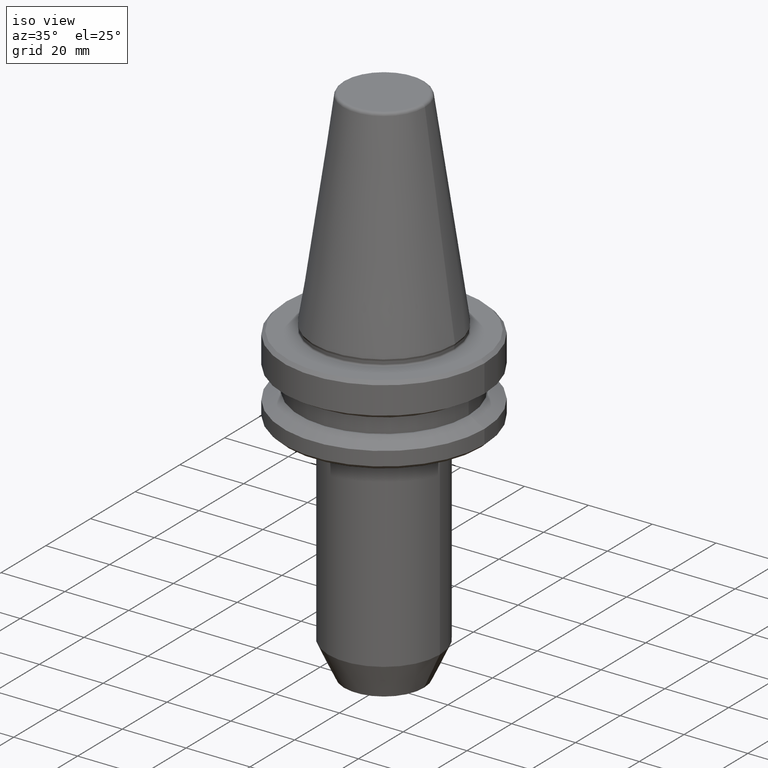
[diagram: clean part render]
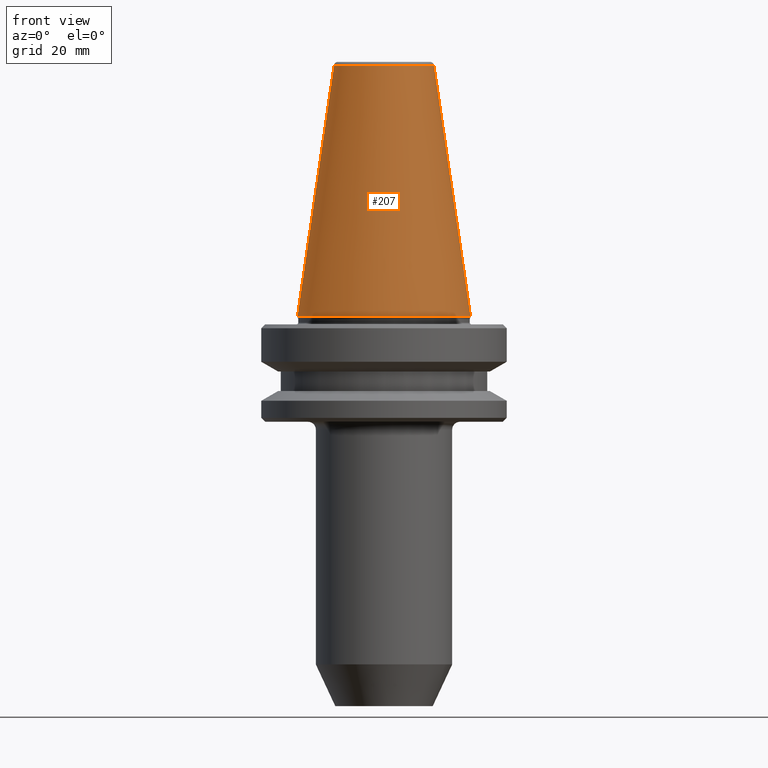
[diagram: tour spotlight — one face highlighted and labeled with its STEP entity id]
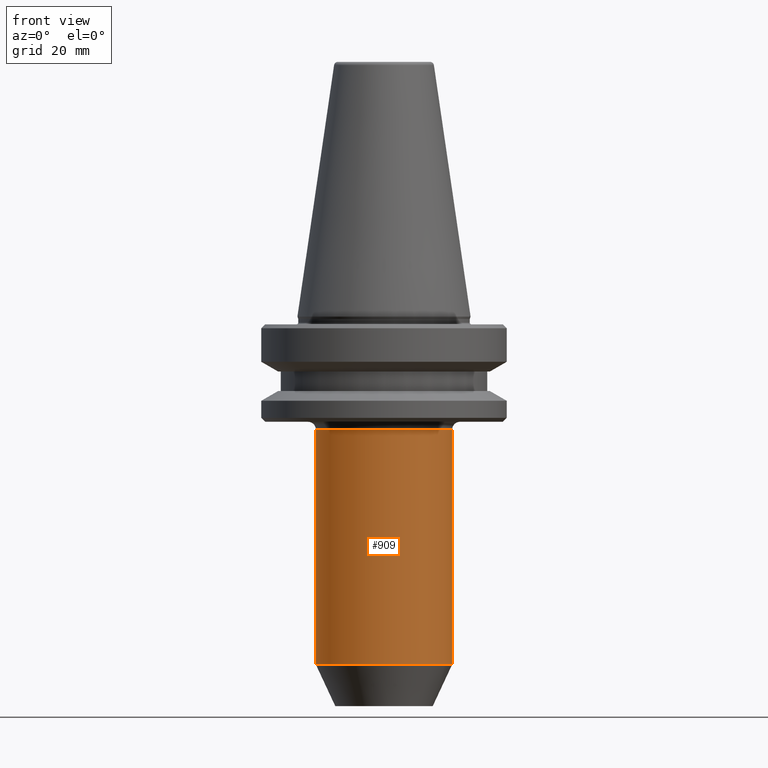
[diagram: tour spotlight — one face highlighted and labeled with its STEP entity id]
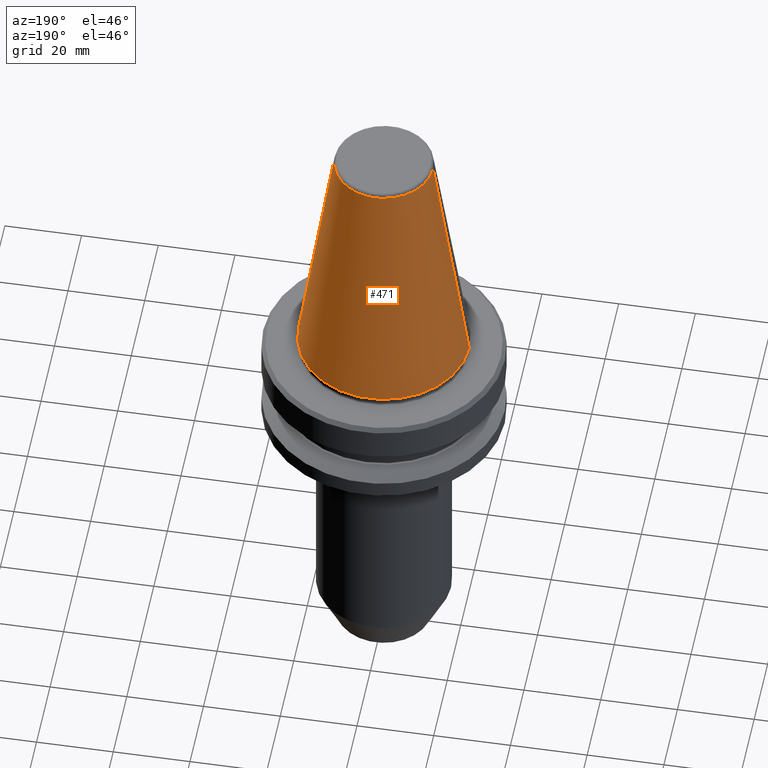
[diagram: tour spotlight — one face highlighted and labeled with its STEP entity id]
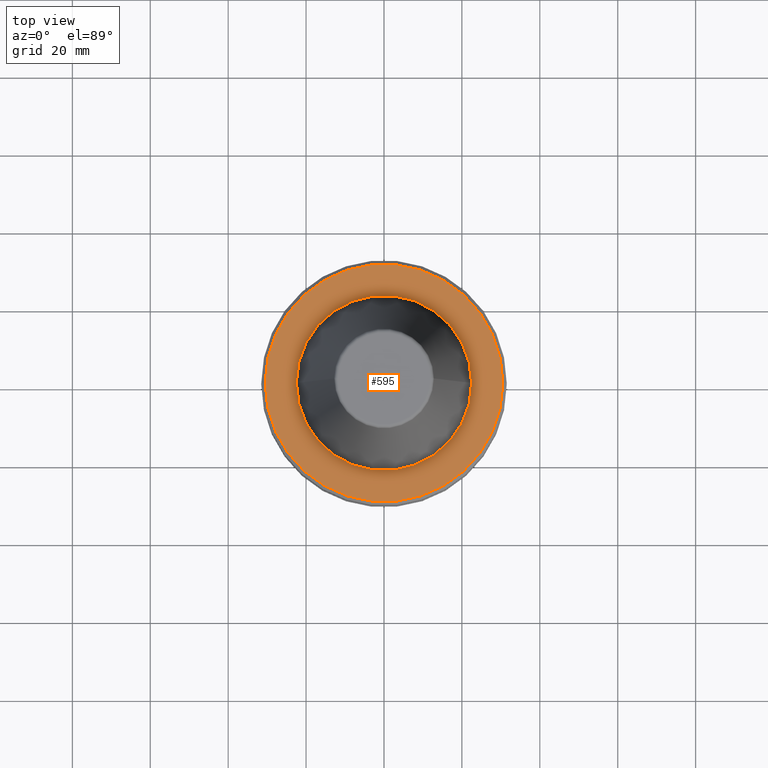
[diagram: tour spotlight — one face highlighted and labeled with its STEP entity id]
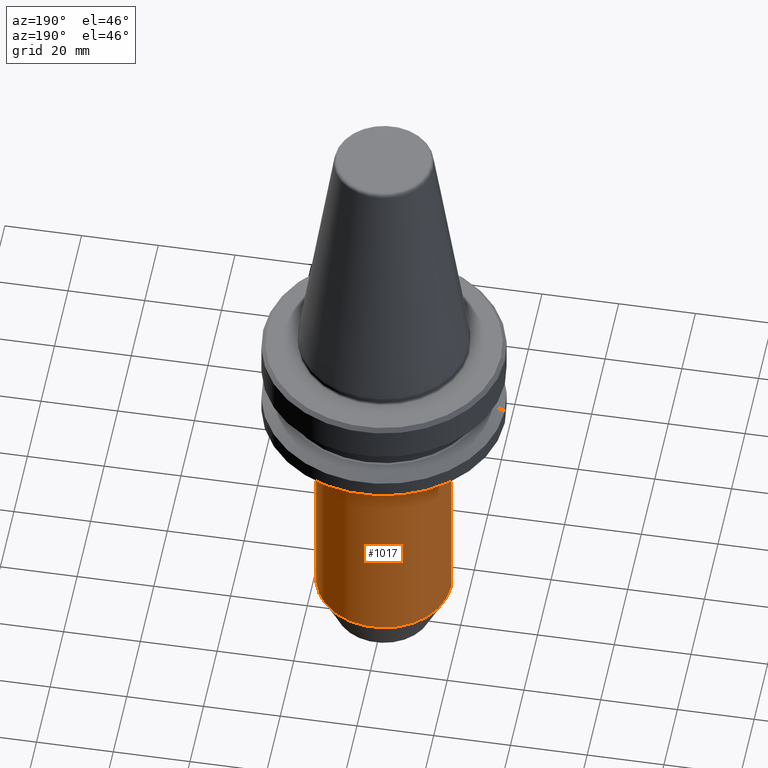
[diagram: tour spotlight — one face highlighted and labeled with its STEP entity id]
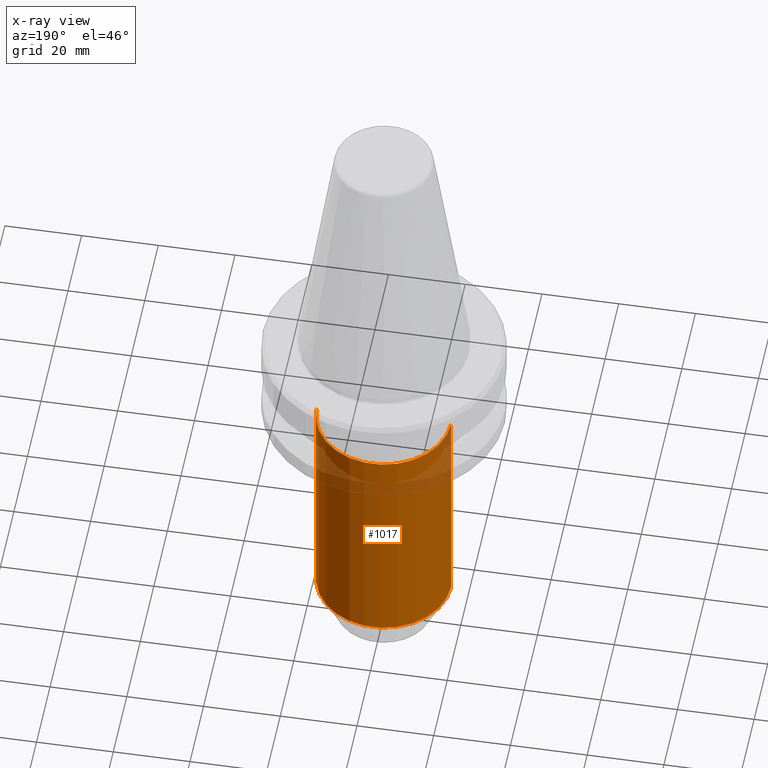
[diagram: x-ray of the same camera — body ghosted, this tour face saturated]
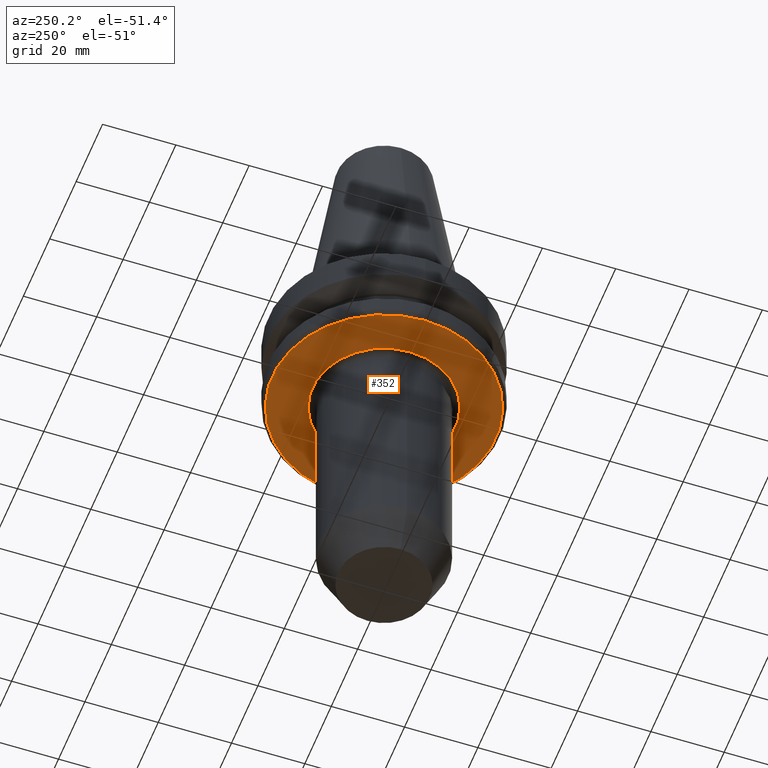
[diagram: tour spotlight — one face highlighted and labeled with its STEP entity id]
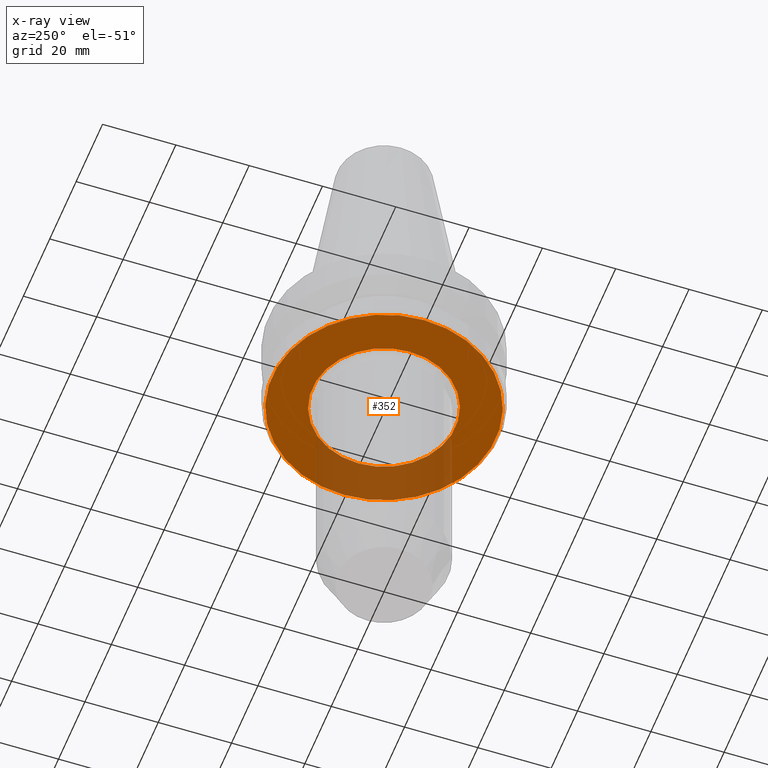
[diagram: x-ray of the same camera — body ghosted, this tour face saturated]
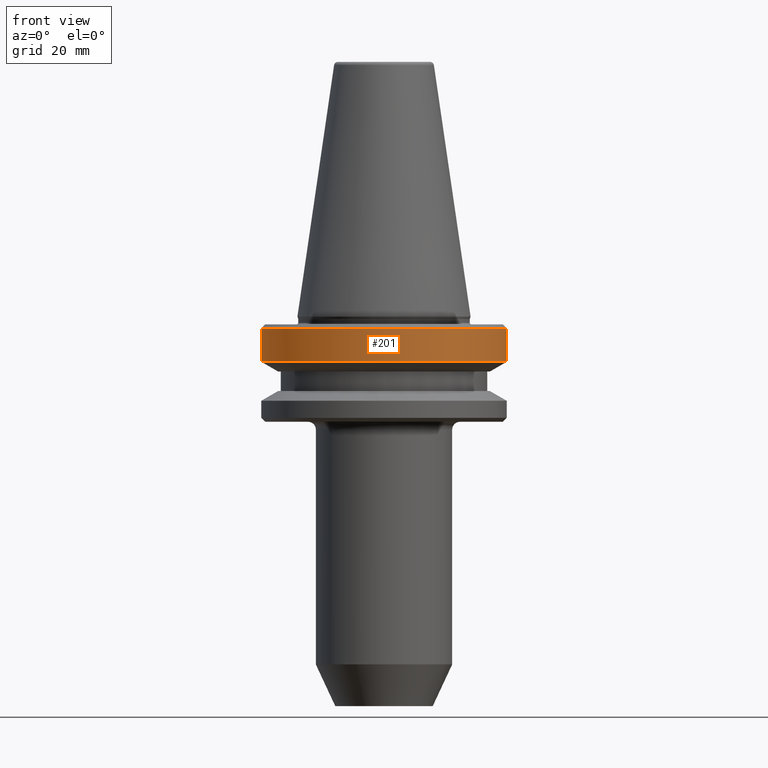
[diagram: tour spotlight — one face highlighted and labeled with its STEP entity id]
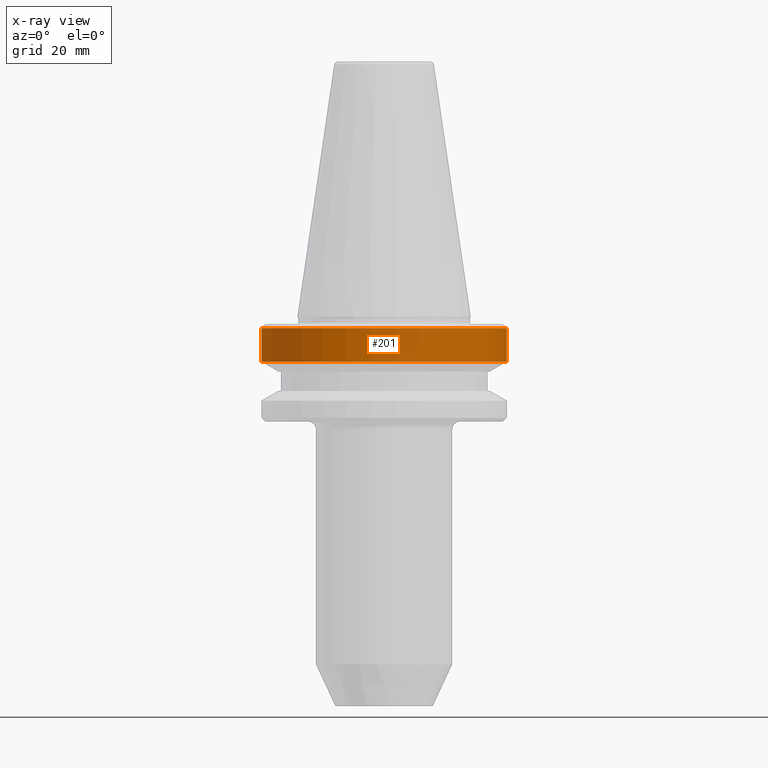
[diagram: x-ray of the same camera — body ghosted, this tour face saturated]
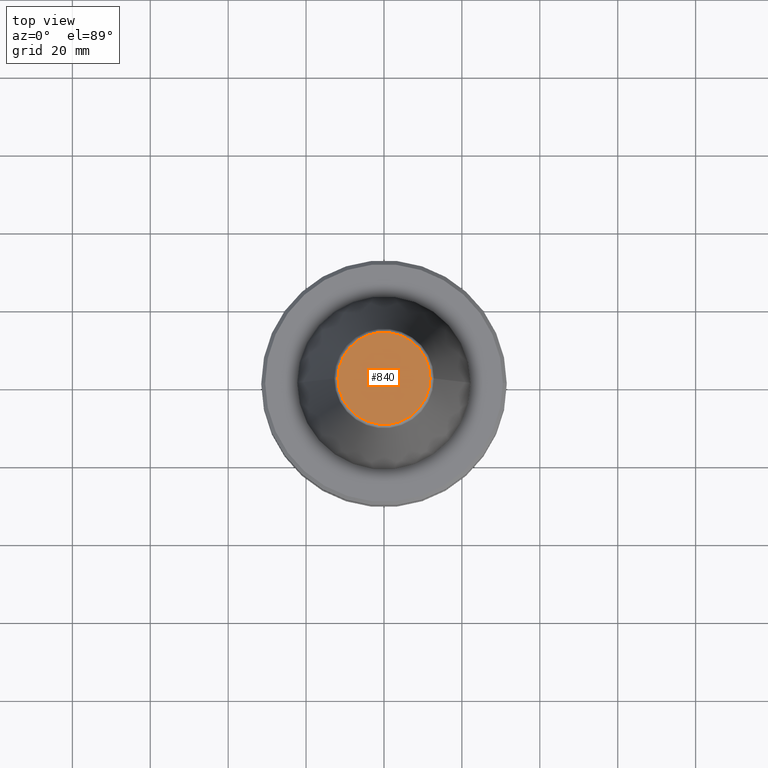
[diagram: tour spotlight — one face highlighted and labeled with its STEP entity id]
A machine part: a face-by-face anatomy tour. The part has 38 B-rep faces; the first image is the clean iso view, then the 8 largest visible faces are spotlighted one at a time (largest first), each with its STEP entity span.

Face 1 — front view, entity #207. In plain terms, the highlighted conical surface has half-angle 8.297 deg.
Definition (entity closure, byte-faithful):
#2 = CARTESIAN_POINT ( 'NONE',  ( -22.22499999999982700, 0.0000000000000000000, 0.0000000000000000000 ) ) ;
#13 = ORIENTED_EDGE ( 'NONE', *, *, #1019, .F. ) ;
#27 = ORIENTED_EDGE ( 'NONE', *, *, #652, .T. ) ;
#56 = CARTESIAN_POINT ( 'NONE',  ( 22.22499999999982700, 2.721777511104971500E-015, 0.0000000000000000000 ) ) ;
#58 = LINE ( 'NONE', #56, #448 ) ;
#99 = VERTEX_POINT ( 'NONE', #512 ) ;
#102 = CARTESIAN_POINT ( 'NONE',  ( -12.81220206925716500, 1.569042225414488200E-015, 64.54430818888884900 ) ) ;
#140 = ORIENTED_EDGE ( 'NONE', *, *, #300, .T. ) ;
#159 = CONICAL_SURFACE ( 'NONE', #742, 22.22499999999982700, 0.1448138077623203600 ) ;
#207 = ADVANCED_FACE ( 'NONE', ( #1036 ), #159, .T. ) ;
#277 = EDGE_LOOP ( 'NONE', ( #13, #795, #27, #140 ) ) ;
#279 = VERTEX_POINT ( 'NONE', #102 ) ;
#300 = EDGE_CURVE ( 'NONE', #99, #375, #427, .T. ) ;
#306 = CARTESIAN_POINT ( 'NONE',  ( 22.22499999999982700, 0.0000000000000000000, 0.0000000000000000000 ) ) ;
#333 = DIRECTION ( 'NONE',  ( 1.000000000000000000, 0.0000000000000000000, 0.0000000000000000000 ) ) ;
#356 = DIRECTION ( 'NONE',  ( -0.0000000000000000000, -0.0000000000000000000, 1.000000000000000000 ) ) ;
#374 = LINE ( 'NONE', #2, #928 ) ;
#375 = VERTEX_POINT ( 'NONE', #306 ) ;
#416 = AXIS2_PLACEMENT_3D ( 'NONE', #948, #356, #333 ) ;
#427 = CIRCLE ( 'NONE', #617, 22.22499999999982700 ) ;
#448 = VECTOR ( 'NONE', #616, 1000.000000000000000 ) ;
#504 = VERTEX_POINT ( 'NONE', #1029 ) ;
#512 = CARTESIAN_POINT ( 'NONE',  ( -22.22499999999982700, 2.721777511104971500E-015, 0.0000000000000000000 ) ) ;
#562 = CIRCLE ( 'NONE', #416, 12.81220206925715000 ) ;
#605 = EDGE_CURVE ( 'NONE', #279, #504, #562, .T. ) ;
#616 = DIRECTION ( 'NONE',  ( 0.1443081888881801200, 1.767265616126614100E-017, -0.9895327920891825400 ) ) ;
#617 = AXIS2_PLACEMENT_3D ( 'NONE', #1034, #776, #669 ) ;
#627 = DIRECTION ( 'NONE',  ( 0.0000000000000000000, 0.0000000000000000000, -1.000000000000000000 ) ) ;
#652 = EDGE_CURVE ( 'NONE', #279, #99, #374, .T. ) ;
#669 = DIRECTION ( 'NONE',  ( 1.000000000000000000, 0.0000000000000000000, 0.0000000000000000000 ) ) ;
#742 = AXIS2_PLACEMENT_3D ( 'NONE', #1009, #627, #800 ) ;
#776 = DIRECTION ( 'NONE',  ( -0.0000000000000000000, -0.0000000000000000000, 1.000000000000000000 ) ) ;
#795 = ORIENTED_EDGE ( 'NONE', *, *, #605, .F. ) ;
#800 = DIRECTION ( 'NONE',  ( -1.000000000000000000, 0.0000000000000000000, 0.0000000000000000000 ) ) ;
#928 = VECTOR ( 'NONE', #1042, 1000.000000000000000 ) ;
#948 = CARTESIAN_POINT ( 'NONE',  ( 0.0000000000000000000, 0.0000000000000000000, 64.54430818888884900 ) ) ;
#1009 = CARTESIAN_POINT ( 'NONE',  ( 0.0000000000000000000, 0.0000000000000000000, 0.0000000000000000000 ) ) ;
#1019 = EDGE_CURVE ( 'NONE', #504, #375, #58, .T. ) ;
#1029 = CARTESIAN_POINT ( 'NONE',  ( 12.81220206925716500, 0.0000000000000000000, 64.54430818888884900 ) ) ;
#1034 = CARTESIAN_POINT ( 'NONE',  ( 0.0000000000000000000, 0.0000000000000000000, 0.0000000000000000000 ) ) ;
#1036 = FACE_OUTER_BOUND ( 'NONE', #277, .T. ) ;
#1042 = DIRECTION ( 'NONE',  ( -0.1443081888881801200, 0.0000000000000000000, -0.9895327920891825400 ) ) ;

Face 2 — front view, entity #909. In plain terms, the highlighted cylindrical surface (partial cylindrical patch) has radius 17.5 mm, axis along (-0, -0, 1).
Definition (entity closure, byte-faithful):
#19 = AXIS2_PLACEMENT_3D ( 'NONE', #433, #700, #968 ) ;
#32 = CARTESIAN_POINT ( 'NONE',  ( -17.49999999999807400, 2.143131898507632400E-015, 118.8520854233388800 ) ) ;
#59 = EDGE_CURVE ( 'NONE', #304, #171, #1047, .T. ) ;
#62 = LINE ( 'NONE', #32, #285 ) ;
#76 = AXIS2_PLACEMENT_3D ( 'NONE', #83, #682, #477 ) ;
#83 = CARTESIAN_POINT ( 'NONE',  ( 0.0000000000000000000, 0.0000000000000000000, -29.00000000008772000 ) ) ;
#107 = AXIS2_PLACEMENT_3D ( 'NONE', #551, #372, #456 ) ;
#171 = VERTEX_POINT ( 'NONE', #737 ) ;
#267 = DIRECTION ( 'NONE',  ( -0.0000000000000000000, -0.0000000000000000000, 1.000000000000000000 ) ) ;
#285 = VECTOR ( 'NONE', #1030, 1000.000000000000000 ) ;
#304 = VERTEX_POINT ( 'NONE', #563 ) ;
#305 = CIRCLE ( 'NONE', #107, 17.49999999999807400 ) ;
#334 = FACE_OUTER_BOUND ( 'NONE', #722, .T. ) ;
#372 = DIRECTION ( 'NONE',  ( -0.0000000000000000000, -0.0000000000000000000, 1.000000000000000000 ) ) ;
#407 = EDGE_CURVE ( 'NONE', #705, #707, #62, .T. ) ;
#433 = CARTESIAN_POINT ( 'NONE',  ( 0.0000000000000000000, 0.0000000000000000000, 118.8520854233388800 ) ) ;
#456 = DIRECTION ( 'NONE',  ( 1.000000000000000000, 0.0000000000000000000, 0.0000000000000000000 ) ) ;
#477 = DIRECTION ( 'NONE',  ( 1.000000000000000000, 0.0000000000000000000, 0.0000000000000000000 ) ) ;
#551 = CARTESIAN_POINT ( 'NONE',  ( 0.0000000000000000000, 0.0000000000000000000, -89.27746539756474000 ) ) ;
#563 = CARTESIAN_POINT ( 'NONE',  ( 17.49999999999807400, 0.0000000000000000000, -89.27746539756474000 ) ) ;
#630 = CIRCLE ( 'NONE', #76, 17.49999999999807400 ) ;
#682 = DIRECTION ( 'NONE',  ( -0.0000000000000000000, -0.0000000000000000000, 1.000000000000000000 ) ) ;
#700 = DIRECTION ( 'NONE',  ( -0.0000000000000000000, -0.0000000000000000000, 1.000000000000000000 ) ) ;
#705 = VERTEX_POINT ( 'NONE', #1041 ) ;
#707 = VERTEX_POINT ( 'NONE', #845 ) ;
#709 = ORIENTED_EDGE ( 'NONE', *, *, #59, .T. ) ;
#722 = EDGE_LOOP ( 'NONE', ( #731, #782, #709, #1040 ) ) ;
#731 = ORIENTED_EDGE ( 'NONE', *, *, #407, .F. ) ;
#732 = CYLINDRICAL_SURFACE ( 'NONE', #19, 17.49999999999807400 ) ;
#737 = CARTESIAN_POINT ( 'NONE',  ( 17.49999999999807400, 0.0000000000000000000, -29.00000000008772000 ) ) ;
#745 = EDGE_CURVE ( 'NONE', #705, #304, #305, .T. ) ;
#768 = VECTOR ( 'NONE', #267, 1000.000000000000000 ) ;
#782 = ORIENTED_EDGE ( 'NONE', *, *, #745, .T. ) ;
#845 = CARTESIAN_POINT ( 'NONE',  ( -17.49999999999807400, 2.143131898507632400E-015, -29.00000000008772000 ) ) ;
#909 = ADVANCED_FACE ( 'NONE', ( #334 ), #732, .T. ) ;
#957 = CARTESIAN_POINT ( 'NONE',  ( 17.49999999999807400, 0.0000000000000000000, 118.8520854233388800 ) ) ;
#968 = DIRECTION ( 'NONE',  ( 1.000000000000000000, 0.0000000000000000000, 0.0000000000000000000 ) ) ;
#1020 = EDGE_CURVE ( 'NONE', #707, #171, #630, .T. ) ;
#1030 = DIRECTION ( 'NONE',  ( -0.0000000000000000000, -0.0000000000000000000, 1.000000000000000000 ) ) ;
#1040 = ORIENTED_EDGE ( 'NONE', *, *, #1020, .F. ) ;
#1041 = CARTESIAN_POINT ( 'NONE',  ( -17.49999999999807400, 2.143131898507632400E-015, -89.27746539756474000 ) ) ;
#1047 = LINE ( 'NONE', #957, #768 ) ;

Face 3 — auxiliary view, entity #471. In plain terms, the highlighted conical surface has half-angle 8.297 deg.
Definition (entity closure, byte-faithful):
#2 = CARTESIAN_POINT ( 'NONE',  ( -22.22499999999982700, 0.0000000000000000000, 0.0000000000000000000 ) ) ;
#14 = CARTESIAN_POINT ( 'NONE',  ( 0.0000000000000000000, 0.0000000000000000000, 64.54430818888884900 ) ) ;
#28 = ORIENTED_EDGE ( 'NONE', *, *, #536, .F. ) ;
#40 = CARTESIAN_POINT ( 'NONE',  ( 0.0000000000000000000, 0.0000000000000000000, 0.0000000000000000000 ) ) ;
#56 = CARTESIAN_POINT ( 'NONE',  ( 22.22499999999982700, 2.721777511104971500E-015, 0.0000000000000000000 ) ) ;
#58 = LINE ( 'NONE', #56, #448 ) ;
#99 = VERTEX_POINT ( 'NONE', #512 ) ;
#102 = CARTESIAN_POINT ( 'NONE',  ( -12.81220206925716500, 1.569042225414488200E-015, 64.54430818888884900 ) ) ;
#135 = ORIENTED_EDGE ( 'NONE', *, *, #399, .T. ) ;
#263 = DIRECTION ( 'NONE',  ( -1.000000000000000000, 0.0000000000000000000, 0.0000000000000000000 ) ) ;
#270 = DIRECTION ( 'NONE',  ( 0.0000000000000000000, 0.0000000000000000000, -1.000000000000000000 ) ) ;
#273 = DIRECTION ( 'NONE',  ( 1.000000000000000000, 0.0000000000000000000, 0.0000000000000000000 ) ) ;
#279 = VERTEX_POINT ( 'NONE', #102 ) ;
#306 = CARTESIAN_POINT ( 'NONE',  ( 22.22499999999982700, 0.0000000000000000000, 0.0000000000000000000 ) ) ;
#331 = DIRECTION ( 'NONE',  ( -0.0000000000000000000, -0.0000000000000000000, 1.000000000000000000 ) ) ;
#364 = ORIENTED_EDGE ( 'NONE', *, *, #1019, .T. ) ;
#374 = LINE ( 'NONE', #2, #928 ) ;
#375 = VERTEX_POINT ( 'NONE', #306 ) ;
#399 = EDGE_CURVE ( 'NONE', #375, #99, #885, .T. ) ;
#423 = CIRCLE ( 'NONE', #798, 12.81220206925715000 ) ;
#448 = VECTOR ( 'NONE', #616, 1000.000000000000000 ) ;
#471 = ADVANCED_FACE ( 'NONE', ( #481 ), #866, .T. ) ;
#481 = FACE_OUTER_BOUND ( 'NONE', #988, .T. ) ;
#488 = AXIS2_PLACEMENT_3D ( 'NONE', #749, #270, #263 ) ;
#504 = VERTEX_POINT ( 'NONE', #1029 ) ;
#512 = CARTESIAN_POINT ( 'NONE',  ( -22.22499999999982700, 2.721777511104971500E-015, 0.0000000000000000000 ) ) ;
#536 = EDGE_CURVE ( 'NONE', #504, #279, #423, .T. ) ;
#616 = DIRECTION ( 'NONE',  ( 0.1443081888881801200, 1.767265616126614100E-017, -0.9895327920891825400 ) ) ;
#652 = EDGE_CURVE ( 'NONE', #279, #99, #374, .T. ) ;
#688 = ORIENTED_EDGE ( 'NONE', *, *, #652, .F. ) ;
#749 = CARTESIAN_POINT ( 'NONE',  ( 0.0000000000000000000, 0.0000000000000000000, 0.0000000000000000000 ) ) ;
#798 = AXIS2_PLACEMENT_3D ( 'NONE', #14, #897, #273 ) ;
#866 = CONICAL_SURFACE ( 'NONE', #488, 22.22499999999982700, 0.1448138077623203600 ) ;
#885 = CIRCLE ( 'NONE', #1028, 22.22499999999982700 ) ;
#897 = DIRECTION ( 'NONE',  ( -0.0000000000000000000, -0.0000000000000000000, 1.000000000000000000 ) ) ;
#928 = VECTOR ( 'NONE', #1042, 1000.000000000000000 ) ;
#988 = EDGE_LOOP ( 'NONE', ( #28, #364, #135, #688 ) ) ;
#1019 = EDGE_CURVE ( 'NONE', #504, #375, #58, .T. ) ;
#1021 = DIRECTION ( 'NONE',  ( 1.000000000000000000, 0.0000000000000000000, 0.0000000000000000000 ) ) ;
#1028 = AXIS2_PLACEMENT_3D ( 'NONE', #40, #331, #1021 ) ;
#1029 = CARTESIAN_POINT ( 'NONE',  ( 12.81220206925716500, 0.0000000000000000000, 64.54430818888884900 ) ) ;
#1042 = DIRECTION ( 'NONE',  ( -0.1443081888881801200, 0.0000000000000000000, -0.9895327920891825400 ) ) ;

Face 4 — top view, entity #595. In plain terms, the highlighted planar face has unit normal (0, 0, -1).
Definition (entity closure, byte-faithful):
#15 = CIRCLE ( 'NONE', #496, 22.49999999999985400 ) ;
#100 = VERTEX_POINT ( 'NONE', #813 ) ;
#117 = CARTESIAN_POINT ( 'NONE',  ( 0.0000000000000000000, 0.0000000000000000000, -1.999999999999779700 ) ) ;
#120 = EDGE_CURVE ( 'NONE', #820, #450, #537, .T. ) ;
#148 = FACE_BOUND ( 'NONE', #677, .T. ) ;
#155 = DIRECTION ( 'NONE',  ( -0.0000000000000000000, -0.0000000000000000000, 1.000000000000000000 ) ) ;
#162 = ORIENTED_EDGE ( 'NONE', *, *, #637, .T. ) ;
#252 = DIRECTION ( 'NONE',  ( -0.0000000000000000000, -0.0000000000000000000, 1.000000000000000000 ) ) ;
#325 = CIRCLE ( 'NONE', #944, 30.49999999999986100 ) ;
#344 = CARTESIAN_POINT ( 'NONE',  ( 22.49999999999985400, 0.0000000000000000000, -1.999999999999793500 ) ) ;
#351 = AXIS2_PLACEMENT_3D ( 'NONE', #613, #971, #495 ) ;
#450 = VERTEX_POINT ( 'NONE', #939 ) ;
#460 = DIRECTION ( 'NONE',  ( 0.0000000000000000000, 0.0000000000000000000, -1.000000000000000000 ) ) ;
#485 = DIRECTION ( 'NONE',  ( 1.000000000000000000, 0.0000000000000000000, 0.0000000000000000000 ) ) ;
#495 = DIRECTION ( 'NONE',  ( 1.000000000000000000, 0.0000000000000000000, 0.0000000000000000000 ) ) ;
#496 = AXIS2_PLACEMENT_3D ( 'NONE', #570, #155, #1032 ) ;
#520 = DIRECTION ( 'NONE',  ( 1.000000000000000000, 0.0000000000000000000, 0.0000000000000000000 ) ) ;
#537 = CIRCLE ( 'NONE', #351, 30.49999999999986100 ) ;
#570 = CARTESIAN_POINT ( 'NONE',  ( 0.0000000000000000000, 0.0000000000000000000, -1.999999999999779700 ) ) ;
#581 = EDGE_CURVE ( 'NONE', #100, #890, #783, .T. ) ;
#590 = AXIS2_PLACEMENT_3D ( 'NONE', #835, #460, #681 ) ;
#594 = AXIS2_PLACEMENT_3D ( 'NONE', #117, #252, #520 ) ;
#595 = ADVANCED_FACE ( 'NONE', ( #148, #760 ), #826, .F. ) ;
#613 = CARTESIAN_POINT ( 'NONE',  ( 0.0000000000000000000, 0.0000000000000000000, -1.999999999999779700 ) ) ;
#637 = EDGE_CURVE ( 'NONE', #450, #820, #325, .T. ) ;
#665 = EDGE_LOOP ( 'NONE', ( #162, #889 ) ) ;
#677 = EDGE_LOOP ( 'NONE', ( #855, #1048 ) ) ;
#681 = DIRECTION ( 'NONE',  ( -1.000000000000000000, 0.0000000000000000000, -0.0000000000000000000 ) ) ;
#715 = CARTESIAN_POINT ( 'NONE',  ( 0.0000000000000000000, 0.0000000000000000000, -1.999999999999779700 ) ) ;
#760 = FACE_OUTER_BOUND ( 'NONE', #665, .T. ) ;
#783 = CIRCLE ( 'NONE', #594, 22.49999999999985400 ) ;
#813 = CARTESIAN_POINT ( 'NONE',  ( -22.49999999999985400, 2.755455298081526600E-015, -1.999999999999793500 ) ) ;
#814 = EDGE_CURVE ( 'NONE', #890, #100, #15, .T. ) ;
#820 = VERTEX_POINT ( 'NONE', #938 ) ;
#826 = PLANE ( 'NONE',  #590 ) ;
#835 = CARTESIAN_POINT ( 'NONE',  ( 0.0000000000000000000, 30.49999999999986100, -1.999999999999779700 ) ) ;
#855 = ORIENTED_EDGE ( 'NONE', *, *, #814, .F. ) ;
#889 = ORIENTED_EDGE ( 'NONE', *, *, #120, .T. ) ;
#890 = VERTEX_POINT ( 'NONE', #344 ) ;
#938 = CARTESIAN_POINT ( 'NONE',  ( 30.49999999999986100, 3.796405077356777800E-015, -1.999999999999779700 ) ) ;
#939 = CARTESIAN_POINT ( 'NONE',  ( -30.49999999999986100, 0.0000000000000000000, -1.999999999999779700 ) ) ;
#944 = AXIS2_PLACEMENT_3D ( 'NONE', #715, #1027, #485 ) ;
#971 = DIRECTION ( 'NONE',  ( -0.0000000000000000000, -0.0000000000000000000, 1.000000000000000000 ) ) ;
#1027 = DIRECTION ( 'NONE',  ( -0.0000000000000000000, -0.0000000000000000000, 1.000000000000000000 ) ) ;
#1032 = DIRECTION ( 'NONE',  ( 1.000000000000000000, 0.0000000000000000000, 0.0000000000000000000 ) ) ;
#1048 = ORIENTED_EDGE ( 'NONE', *, *, #581, .F. ) ;

Face 5 — auxiliary view, entity #1017. An x-ray twin of the same camera follows (body ghosted, this face saturated) — the face is partly hidden behind the body. In plain terms, the highlighted cylindrical surface (partial cylindrical patch) has radius 17.5 mm, axis along (-0, -0, 1).
Definition (entity closure, byte-faithful):
#7 = DIRECTION ( 'NONE',  ( 1.000000000000000000, 0.0000000000000000000, 0.0000000000000000000 ) ) ;
#12 = ORIENTED_EDGE ( 'NONE', *, *, #380, .F. ) ;
#32 = CARTESIAN_POINT ( 'NONE',  ( -17.49999999999807400, 2.143131898507632400E-015, 118.8520854233388800 ) ) ;
#34 = EDGE_CURVE ( 'NONE', #304, #705, #984, .T. ) ;
#59 = EDGE_CURVE ( 'NONE', #304, #171, #1047, .T. ) ;
#62 = LINE ( 'NONE', #32, #285 ) ;
#85 = AXIS2_PLACEMENT_3D ( 'NONE', #529, #398, #172 ) ;
#168 = DIRECTION ( 'NONE',  ( -0.0000000000000000000, -0.0000000000000000000, 1.000000000000000000 ) ) ;
#171 = VERTEX_POINT ( 'NONE', #737 ) ;
#172 = DIRECTION ( 'NONE',  ( 1.000000000000000000, 0.0000000000000000000, 0.0000000000000000000 ) ) ;
#214 = ORIENTED_EDGE ( 'NONE', *, *, #34, .T. ) ;
#228 = DIRECTION ( 'NONE',  ( 1.000000000000000000, 0.0000000000000000000, 0.0000000000000000000 ) ) ;
#267 = DIRECTION ( 'NONE',  ( -0.0000000000000000000, -0.0000000000000000000, 1.000000000000000000 ) ) ;
#285 = VECTOR ( 'NONE', #1030, 1000.000000000000000 ) ;
#304 = VERTEX_POINT ( 'NONE', #563 ) ;
#380 = EDGE_CURVE ( 'NONE', #171, #707, #678, .T. ) ;
#398 = DIRECTION ( 'NONE',  ( -0.0000000000000000000, -0.0000000000000000000, 1.000000000000000000 ) ) ;
#407 = EDGE_CURVE ( 'NONE', #705, #707, #62, .T. ) ;
#419 = CYLINDRICAL_SURFACE ( 'NONE', #85, 17.49999999999807400 ) ;
#452 = DIRECTION ( 'NONE',  ( -0.0000000000000000000, -0.0000000000000000000, 1.000000000000000000 ) ) ;
#516 = ORIENTED_EDGE ( 'NONE', *, *, #407, .T. ) ;
#529 = CARTESIAN_POINT ( 'NONE',  ( 0.0000000000000000000, 0.0000000000000000000, 118.8520854233388800 ) ) ;
#563 = CARTESIAN_POINT ( 'NONE',  ( 17.49999999999807400, 0.0000000000000000000, -89.27746539756474000 ) ) ;
#576 = CARTESIAN_POINT ( 'NONE',  ( 0.0000000000000000000, 0.0000000000000000000, -89.27746539756474000 ) ) ;
#596 = CARTESIAN_POINT ( 'NONE',  ( 0.0000000000000000000, 0.0000000000000000000, -29.00000000008772000 ) ) ;
#678 = CIRCLE ( 'NONE', #712, 17.49999999999807400 ) ;
#705 = VERTEX_POINT ( 'NONE', #1041 ) ;
#707 = VERTEX_POINT ( 'NONE', #845 ) ;
#712 = AXIS2_PLACEMENT_3D ( 'NONE', #596, #168, #7 ) ;
#737 = CARTESIAN_POINT ( 'NONE',  ( 17.49999999999807400, 0.0000000000000000000, -29.00000000008772000 ) ) ;
#768 = VECTOR ( 'NONE', #267, 1000.000000000000000 ) ;
#786 = AXIS2_PLACEMENT_3D ( 'NONE', #576, #452, #228 ) ;
#845 = CARTESIAN_POINT ( 'NONE',  ( -17.49999999999807400, 2.143131898507632400E-015, -29.00000000008772000 ) ) ;
#863 = FACE_OUTER_BOUND ( 'NONE', #894, .T. ) ;
#876 = ORIENTED_EDGE ( 'NONE', *, *, #59, .F. ) ;
#894 = EDGE_LOOP ( 'NONE', ( #214, #516, #12, #876 ) ) ;
#957 = CARTESIAN_POINT ( 'NONE',  ( 17.49999999999807400, 0.0000000000000000000, 118.8520854233388800 ) ) ;
#984 = CIRCLE ( 'NONE', #786, 17.49999999999807400 ) ;
#1017 = ADVANCED_FACE ( 'NONE', ( #863 ), #419, .T. ) ;
#1030 = DIRECTION ( 'NONE',  ( -0.0000000000000000000, -0.0000000000000000000, 1.000000000000000000 ) ) ;
#1041 = CARTESIAN_POINT ( 'NONE',  ( -17.49999999999807400, 2.143131898507632400E-015, -89.27746539756474000 ) ) ;
#1047 = LINE ( 'NONE', #957, #768 ) ;

Face 6 — auxiliary view, entity #352. An x-ray twin of the same camera follows (body ghosted, this face saturated) — the face is partly hidden behind the body. In plain terms, the highlighted planar face has unit normal (0, -0, 1).
Definition (entity closure, byte-faithful):
#97 = DIRECTION ( 'NONE',  ( 1.000000000000000000, 0.0000000000000000000, 0.0000000000000000000 ) ) ;
#103 = VERTEX_POINT ( 'NONE', #870 ) ;
#137 = CIRCLE ( 'NONE', #361, 19.49999999999807400 ) ;
#157 = EDGE_LOOP ( 'NONE', ( #792, #772 ) ) ;
#188 = DIRECTION ( 'NONE',  ( -0.0000000000000000000, -0.0000000000000000000, 1.000000000000000000 ) ) ;
#193 = CARTESIAN_POINT ( 'NONE',  ( 0.0000000000000000000, 0.0000000000000000000, -27.00000000008771700 ) ) ;
#196 = CIRCLE ( 'NONE', #726, 19.49999999999807400 ) ;
#227 = VERTEX_POINT ( 'NONE', #309 ) ;
#245 = AXIS2_PLACEMENT_3D ( 'NONE', #716, #764, #955 ) ;
#257 = ORIENTED_EDGE ( 'NONE', *, *, #1024, .F. ) ;
#264 = CARTESIAN_POINT ( 'NONE',  ( 0.0000000000000000000, 0.0000000000000000000, -27.00000000008771700 ) ) ;
#284 = AXIS2_PLACEMENT_3D ( 'NONE', #193, #710, #991 ) ;
#309 = CARTESIAN_POINT ( 'NONE',  ( 30.49999999999986100, 0.0000000000000000000, -27.00000000008771700 ) ) ;
#339 = CARTESIAN_POINT ( 'NONE',  ( 0.0000000000000000000, 0.0000000000000000000, -27.00000000008771700 ) ) ;
#352 = ADVANCED_FACE ( 'NONE', ( #579, #753 ), #473, .F. ) ;
#361 = AXIS2_PLACEMENT_3D ( 'NONE', #339, #188, #603 ) ;
#365 = CARTESIAN_POINT ( 'NONE',  ( 0.0000000000000000000, 0.0000000000000000000, -27.00000000008771700 ) ) ;
#418 = CARTESIAN_POINT ( 'NONE',  ( 19.49999999999807400, 0.0000000000000000000, -27.00000000008772400 ) ) ;
#455 = EDGE_CURVE ( 'NONE', #227, #103, #604, .T. ) ;
#473 = PLANE ( 'NONE',  #245 ) ;
#579 = FACE_OUTER_BOUND ( 'NONE', #973, .T. ) ;
#603 = DIRECTION ( 'NONE',  ( 1.000000000000000000, 0.0000000000000000000, 0.0000000000000000000 ) ) ;
#604 = CIRCLE ( 'NONE', #689, 30.49999999999986100 ) ;
#689 = AXIS2_PLACEMENT_3D ( 'NONE', #264, #1031, #929 ) ;
#704 = DIRECTION ( 'NONE',  ( -0.0000000000000000000, -0.0000000000000000000, 1.000000000000000000 ) ) ;
#710 = DIRECTION ( 'NONE',  ( -0.0000000000000000000, -0.0000000000000000000, 1.000000000000000000 ) ) ;
#716 = CARTESIAN_POINT ( 'NONE',  ( 0.0000000000000000000, 30.49999999999986100, -27.00000000008773100 ) ) ;
#726 = AXIS2_PLACEMENT_3D ( 'NONE', #365, #704, #97 ) ;
#753 = FACE_BOUND ( 'NONE', #157, .T. ) ;
#764 = DIRECTION ( 'NONE',  ( 0.0000000000000000000, -0.0000000000000000000, 1.000000000000000000 ) ) ;
#772 = ORIENTED_EDGE ( 'NONE', *, *, #1043, .T. ) ;
#792 = ORIENTED_EDGE ( 'NONE', *, *, #902, .T. ) ;
#870 = CARTESIAN_POINT ( 'NONE',  ( -30.49999999999986100, 3.796405077356791200E-015, -27.00000000008771700 ) ) ;
#902 = EDGE_CURVE ( 'NONE', #1050, #993, #137, .T. ) ;
#927 = ORIENTED_EDGE ( 'NONE', *, *, #455, .F. ) ;
#929 = DIRECTION ( 'NONE',  ( 1.000000000000000000, 0.0000000000000000000, 0.0000000000000000000 ) ) ;
#955 = DIRECTION ( 'NONE',  ( 1.000000000000000000, 0.0000000000000000000, 0.0000000000000000000 ) ) ;
#973 = EDGE_LOOP ( 'NONE', ( #927, #257 ) ) ;
#991 = DIRECTION ( 'NONE',  ( 1.000000000000000000, 0.0000000000000000000, 0.0000000000000000000 ) ) ;
#993 = VERTEX_POINT ( 'NONE', #1013 ) ;
#1013 = CARTESIAN_POINT ( 'NONE',  ( -19.49999999999807400, 2.388061258337103100E-015, -27.00000000008772400 ) ) ;
#1024 = EDGE_CURVE ( 'NONE', #103, #227, #1049, .T. ) ;
#1031 = DIRECTION ( 'NONE',  ( -0.0000000000000000000, -0.0000000000000000000, 1.000000000000000000 ) ) ;
#1043 = EDGE_CURVE ( 'NONE', #993, #1050, #196, .T. ) ;
#1049 = CIRCLE ( 'NONE', #284, 30.49999999999986100 ) ;
#1050 = VERTEX_POINT ( 'NONE', #418 ) ;

Face 7 — front view, entity #201. An x-ray twin of the same camera follows (body ghosted, this face saturated) — the face is partly hidden behind the body. In plain terms, the highlighted cylindrical surface (partial cylindrical patch) has radius 31.5 mm, axis along (-0, -0, 1).
Definition (entity closure, byte-faithful):
#21 = DIRECTION ( 'NONE',  ( -0.0000000000000000000, -0.0000000000000000000, 1.000000000000000000 ) ) ;
#25 = DIRECTION ( 'NONE',  ( -0.0000000000000000000, -0.0000000000000000000, 1.000000000000000000 ) ) ;
#64 = AXIS2_PLACEMENT_3D ( 'NONE', #150, #744, #230 ) ;
#71 = CARTESIAN_POINT ( 'NONE',  ( 31.49999999999986100, 0.0000000000000000000, 118.8520854233388800 ) ) ;
#91 = CARTESIAN_POINT ( 'NONE',  ( 31.49999999999986100, 0.0000000000000000000, -2.999999999999780600 ) ) ;
#92 = LINE ( 'NONE', #71, #996 ) ;
#113 = VERTEX_POINT ( 'NONE', #543 ) ;
#116 = ORIENTED_EDGE ( 'NONE', *, *, #332, .T. ) ;
#150 = CARTESIAN_POINT ( 'NONE',  ( 0.0000000000000000000, 0.0000000000000000000, -2.999999999999780600 ) ) ;
#201 = ADVANCED_FACE ( 'NONE', ( #655 ), #848, .T. ) ;
#230 = DIRECTION ( 'NONE',  ( 1.000000000000000000, 0.0000000000000000000, 0.0000000000000000000 ) ) ;
#311 = CARTESIAN_POINT ( 'NONE',  ( 31.49999999999986100, 0.0000000000000000000, -11.59985799368333500 ) ) ;
#320 = EDGE_CURVE ( 'NONE', #113, #337, #506, .T. ) ;
#322 = DIRECTION ( 'NONE',  ( 1.000000000000000000, 0.0000000000000000000, 0.0000000000000000000 ) ) ;
#332 = EDGE_CURVE ( 'NONE', #1003, #337, #92, .T. ) ;
#337 = VERTEX_POINT ( 'NONE', #91 ) ;
#440 = ORIENTED_EDGE ( 'NONE', *, *, #721, .T. ) ;
#492 = VECTOR ( 'NONE', #685, 1000.000000000000000 ) ;
#493 = ORIENTED_EDGE ( 'NONE', *, *, #761, .F. ) ;
#499 = CARTESIAN_POINT ( 'NONE',  ( -31.49999999999986100, 3.857637417314145300E-015, 118.8520854233388800 ) ) ;
#506 = CIRCLE ( 'NONE', #64, 31.49999999999986100 ) ;
#534 = VERTEX_POINT ( 'NONE', #975 ) ;
#543 = CARTESIAN_POINT ( 'NONE',  ( -31.49999999999986100, 3.857637417314145300E-015, -2.999999999999780600 ) ) ;
#609 = DIRECTION ( 'NONE',  ( -0.0000000000000000000, -0.0000000000000000000, 1.000000000000000000 ) ) ;
#634 = EDGE_LOOP ( 'NONE', ( #493, #440, #116, #674 ) ) ;
#655 = FACE_OUTER_BOUND ( 'NONE', #634, .T. ) ;
#664 = LINE ( 'NONE', #499, #492 ) ;
#674 = ORIENTED_EDGE ( 'NONE', *, *, #320, .F. ) ;
#685 = DIRECTION ( 'NONE',  ( -0.0000000000000000000, -0.0000000000000000000, 1.000000000000000000 ) ) ;
#692 = CIRCLE ( 'NONE', #956, 31.49999999999986100 ) ;
#721 = EDGE_CURVE ( 'NONE', #534, #1003, #692, .T. ) ;
#738 = AXIS2_PLACEMENT_3D ( 'NONE', #739, #21, #994 ) ;
#739 = CARTESIAN_POINT ( 'NONE',  ( 0.0000000000000000000, 0.0000000000000000000, 118.8520854233388800 ) ) ;
#744 = DIRECTION ( 'NONE',  ( -0.0000000000000000000, -0.0000000000000000000, 1.000000000000000000 ) ) ;
#761 = EDGE_CURVE ( 'NONE', #534, #113, #664, .T. ) ;
#848 = CYLINDRICAL_SURFACE ( 'NONE', #738, 31.49999999999986100 ) ;
#956 = AXIS2_PLACEMENT_3D ( 'NONE', #997, #609, #322 ) ;
#975 = CARTESIAN_POINT ( 'NONE',  ( -31.49999999999986100, 3.857637417314145300E-015, -11.59985799368333500 ) ) ;
#994 = DIRECTION ( 'NONE',  ( 1.000000000000000000, 0.0000000000000000000, 0.0000000000000000000 ) ) ;
#996 = VECTOR ( 'NONE', #25, 1000.000000000000000 ) ;
#997 = CARTESIAN_POINT ( 'NONE',  ( 0.0000000000000000000, 0.0000000000000000000, -11.59985799368333500 ) ) ;
#1003 = VERTEX_POINT ( 'NONE', #311 ) ;

Face 8 — top view, entity #840. In plain terms, the highlighted planar face has unit normal (0, 0, -1).
Definition (entity closure, byte-faithful):
#9 = EDGE_CURVE ( 'NONE', #491, #874, #480, .T. ) ;
#42 = DIRECTION ( 'NONE',  ( -0.0000000000000000000, -0.0000000000000000000, 1.000000000000000000 ) ) ;
#164 = AXIS2_PLACEMENT_3D ( 'NONE', #624, #42, #649 ) ;
#205 = CARTESIAN_POINT ( 'NONE',  ( -11.82266927716813000, 1.508450817090329900E-015, 65.40000000000067400 ) ) ;
#286 = CARTESIAN_POINT ( 'NONE',  ( 0.0000000000000000000, 0.0000000000000000000, 65.40000000000067400 ) ) ;
#303 = ORIENTED_EDGE ( 'NONE', *, *, #9, .T. ) ;
#342 = CIRCLE ( 'NONE', #728, 11.82266927716813000 ) ;
#349 = EDGE_CURVE ( 'NONE', #874, #491, #342, .T. ) ;
#480 = CIRCLE ( 'NONE', #164, 11.82266927716813000 ) ;
#491 = VERTEX_POINT ( 'NONE', #205 ) ;
#532 = ORIENTED_EDGE ( 'NONE', *, *, #349, .T. ) ;
#571 = CARTESIAN_POINT ( 'NONE',  ( 0.0000000000000000000, 11.82266927716813000, 65.40000000000048900 ) ) ;
#591 = CARTESIAN_POINT ( 'NONE',  ( 11.82266927716813000, 0.0000000000000000000, 65.40000000000067400 ) ) ;
#624 = CARTESIAN_POINT ( 'NONE',  ( 0.0000000000000000000, 0.0000000000000000000, 65.40000000000067400 ) ) ;
#649 = DIRECTION ( 'NONE',  ( 1.000000000000000000, 0.0000000000000000000, 0.0000000000000000000 ) ) ;
#723 = EDGE_LOOP ( 'NONE', ( #532, #303 ) ) ;
#728 = AXIS2_PLACEMENT_3D ( 'NONE', #286, #803, #1044 ) ;
#770 = AXIS2_PLACEMENT_3D ( 'NONE', #571, #976, #1010 ) ;
#780 = PLANE ( 'NONE',  #770 ) ;
#803 = DIRECTION ( 'NONE',  ( -0.0000000000000000000, -0.0000000000000000000, 1.000000000000000000 ) ) ;
#840 = ADVANCED_FACE ( 'NONE', ( #989 ), #780, .F. ) ;
#874 = VERTEX_POINT ( 'NONE', #591 ) ;
#976 = DIRECTION ( 'NONE',  ( 0.0000000000000000000, 0.0000000000000000000, -1.000000000000000000 ) ) ;
#989 = FACE_OUTER_BOUND ( 'NONE', #723, .T. ) ;
#1010 = DIRECTION ( 'NONE',  ( -1.000000000000000000, 0.0000000000000000000, -0.0000000000000000000 ) ) ;
#1044 = DIRECTION ( 'NONE',  ( 1.000000000000000000, 0.0000000000000000000, 0.0000000000000000000 ) ) ;